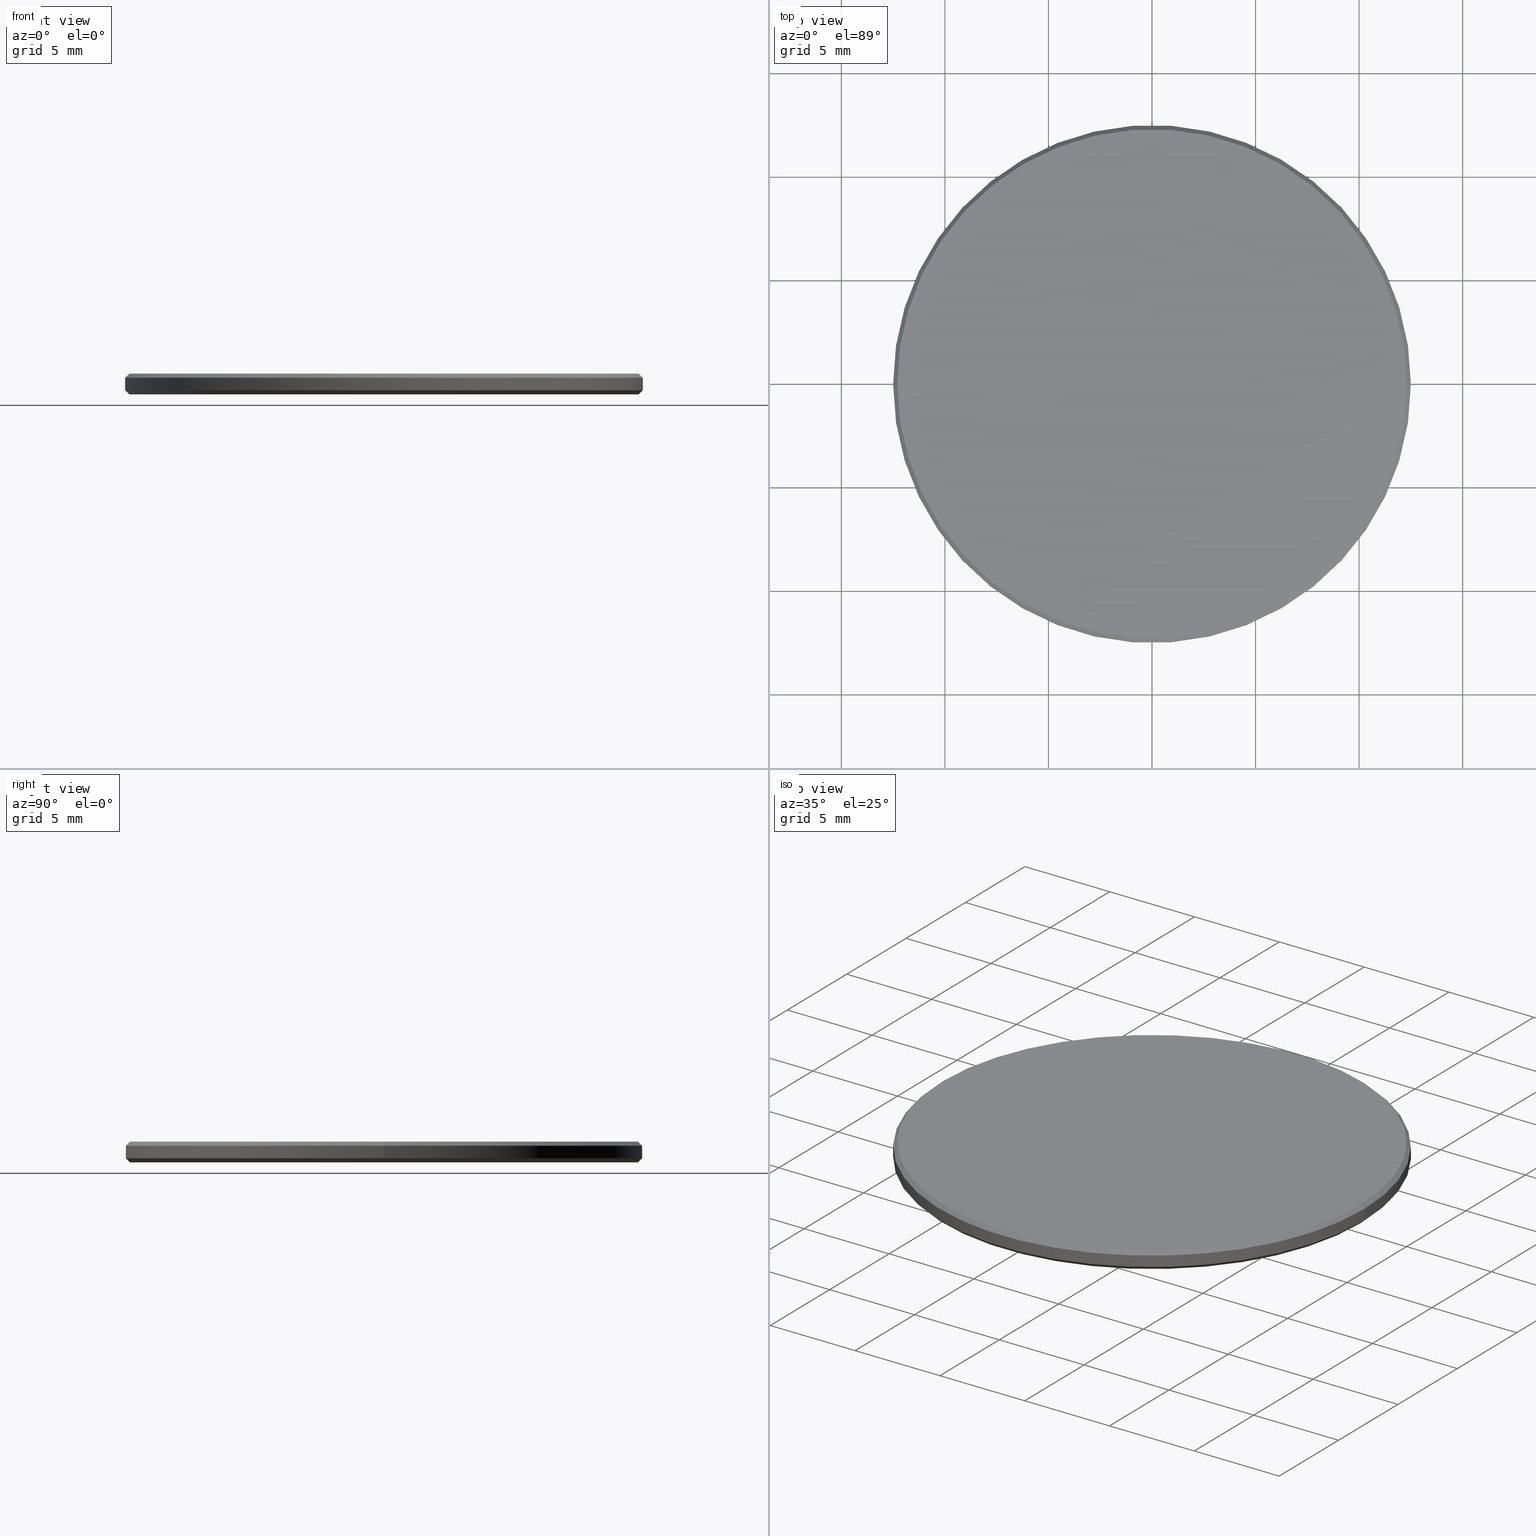
[diagram: canonical four-view strip — front | top / right | iso, engineering-drawing reading convention]
A machine part, canonical four-view strip (front | top / right | iso — engineering-drawing reading convention). The complete STEP part file that produces these views, byte-faithful:
ISO-10303-21;
HEADER;
FILE_DESCRIPTION (( 'STEP AP214' ),
    '1' );
FILE_NAME ('GNIF-220-5250-D25.STEP',
    '2024-07-19T14:27:09',
    ( '' ),
    ( '' ),
    'SwSTEP 2.0',
    'SolidWorks 2022',
    '' );
FILE_SCHEMA (( 'AUTOMOTIVE_DESIGN' ));
ENDSEC;

DATA;
#1 = CARTESIAN_POINT ( 'NONE',  ( 0.000000000000000000, 0.000000000000000000, 0.1999999999999987899 ) ) ;
#2 = PRESENTATION_LAYER_ASSIGNMENT (  '', '', ( #223 ) ) ;
#3 = EDGE_CURVE ( 'NONE', #154, #189, #91, .T. ) ;
#4 = FACE_OUTER_BOUND ( 'NONE', #82, .T. ) ;
#5 = VECTOR ( 'NONE', #90, 1000.000000000000114 ) ;
#6 = AXIS2_PLACEMENT_3D ( 'NONE', #219, #32, #31 ) ;
#7 = CARTESIAN_POINT ( 'NONE',  ( 0.000000000000000000, 0.000000000000000000, 0.8000000000000029310 ) ) ;
#8 = FILL_AREA_STYLE ('',( #57 ) ) ;
#9 = ORIENTED_EDGE ( 'NONE', *, *, #23, .T. ) ;
#10 = ORIENTED_EDGE ( 'NONE', *, *, #109, .F. ) ;
#11 = EDGE_LOOP ( 'NONE', ( #214, #10, #230, #135 ) ) ;
#12 = AXIS2_PLACEMENT_3D ( 'NONE', #106, #160, #94 ) ;
#13 = COLOUR_RGB ( '',1.000000000000000000, 1.000000000000000000, 1.000000000000000000 ) ;
#14 = EDGE_LOOP ( 'NONE', ( #117, #114 ) ) ;
#15 = CARTESIAN_POINT ( 'NONE',  ( 0.000000000000000000, 0.000000000000000000, 1.000000000000000000 ) ) ;
#16 = LINE ( 'NONE', #51, #30 ) ;
#17 = DIRECTION ( 'NONE',  ( 0.000000000000000000, 0.000000000000000000, -1.000000000000000000 ) ) ;
#18 = DIRECTION ( 'NONE',  ( -0.000000000000000000, -0.000000000000000000, -1.000000000000000000 ) ) ;
#19 = APPLICATION_CONTEXT ( 'automotive_design' ) ;
#20 = CARTESIAN_POINT ( 'NONE',  ( 0.000000000000000000, 0.000000000000000000, 1.000000000000000000 ) ) ;
#21 = CARTESIAN_POINT ( 'NONE',  ( 0.000000000000000000, 0.000000000000000000, 0.1999999999999987899 ) ) ;
#22 =( LENGTH_UNIT ( ) NAMED_UNIT ( * ) SI_UNIT ( .MILLI., .METRE. ) );
#23 = EDGE_CURVE ( 'NONE', #227, #116, #202, .T. ) ;
#24 = FACE_OUTER_BOUND ( 'NONE', #224, .T. ) ;
#25 = VERTEX_POINT ( 'NONE', #122 ) ;
#26 = SHAPE_DEFINITION_REPRESENTATION ( #198, #169 ) ;
#27 = AXIS2_PLACEMENT_3D ( 'NONE', #199, #92, #161 ) ;
#28 = ORIENTED_EDGE ( 'NONE', *, *, #3, .F. ) ;
#29 = ORIENTED_EDGE ( 'NONE', *, *, #188, .T. ) ;
#30 = VECTOR ( 'NONE', #162, 1000.000000000000000 ) ;
#31 = DIRECTION ( 'NONE',  ( -1.000000000000000000, 0.000000000000000000, 0.000000000000000000 ) ) ;
#32 = DIRECTION ( 'NONE',  ( 0.000000000000000000, 0.000000000000000000, -1.000000000000000000 ) ) ;
#33 = CARTESIAN_POINT ( 'NONE',  ( -12.50000000000000000, 1.530808498934191521E-15, 0.1999999999999987899 ) ) ;
#34 = EDGE_CURVE ( 'NONE', #25, #193, #70, .T. ) ;
#35 = AXIS2_PLACEMENT_3D ( 'NONE', #144, #159, #141 ) ;
#36 = DIRECTION ( 'NONE',  ( 1.000000000000000000, 0.000000000000000000, 0.000000000000000000 ) ) ;
#37 = CARTESIAN_POINT ( 'NONE',  ( 12.29999999999999893, 1.506315562951244216E-15, 1.000000000000000000 ) ) ;
#38 = CARTESIAN_POINT ( 'NONE',  ( 12.50000000000000000, 1.530808498934191521E-15, 0.8000000000000029310 ) ) ;
#39 = DIRECTION ( 'NONE',  ( -1.000000000000000000, 0.000000000000000000, 0.000000000000000000 ) ) ;
#40 = CONICAL_SURFACE ( 'NONE', #174, 12.29999999999999893, 0.7853981633974612686 ) ;
#41 =( GEOMETRIC_REPRESENTATION_CONTEXT ( 3 ) GLOBAL_UNCERTAINTY_ASSIGNED_CONTEXT ( ( #95 ) ) GLOBAL_UNIT_ASSIGNED_CONTEXT ( ( #42, #173, #118 ) ) REPRESENTATION_CONTEXT ( 'NONE', 'WORKASPACE' ) );
#42 =( LENGTH_UNIT ( ) NAMED_UNIT ( * ) SI_UNIT ( .MILLI., .METRE. ) );
#43 = EDGE_CURVE ( 'NONE', #227, #154, #205, .T. ) ;
#44 = DIRECTION ( 'NONE',  ( 1.000000000000000000, 0.000000000000000000, 0.000000000000000000 ) ) ;
#45 = VERTEX_POINT ( 'NONE', #126 ) ;
#46 = PRODUCT_CONTEXT ( 'NONE', #19, 'mechanical' ) ;
#47 = EDGE_CURVE ( 'NONE', #87, #45, #235, .T. ) ;
#48 = UNCERTAINTY_MEASURE_WITH_UNIT (LENGTH_MEASURE( 1.000000000000000082E-05 ), #56, 'distance_accuracy_value', 'NONE');
#49 = DIRECTION ( 'NONE',  ( 0.000000000000000000, 0.000000000000000000, 1.000000000000000000 ) ) ;
#50 = CARTESIAN_POINT ( 'NONE',  ( 0.000000000000000000, 0.000000000000000000, 1.000000000000000000 ) ) ;
#51 = CARTESIAN_POINT ( 'NONE',  ( -12.50000000000000000, 0.000000000000000000, 1.000000000000000000 ) ) ;
#52 = CARTESIAN_POINT ( 'NONE',  ( -12.50000000000000000, 0.000000000000000000, 0.1999999999999987899 ) ) ;
#53 = AXIS2_PLACEMENT_3D ( 'NONE', #138, #236, #71 ) ;
#54 = AXIS2_PLACEMENT_3D ( 'NONE', #96, #206, #39 ) ;
#55 = FACE_OUTER_BOUND ( 'NONE', #14, .T. ) ;
#56 =( LENGTH_UNIT ( ) NAMED_UNIT ( * ) SI_UNIT ( .MILLI., .METRE. ) );
#57 = FILL_AREA_STYLE_COLOUR ( '', #13 ) ;
#58 =( NAMED_UNIT ( * ) SI_UNIT ( $, .STERADIAN. ) SOLID_ANGLE_UNIT ( ) );
#59 = PRESENTATION_STYLE_ASSIGNMENT (( #164 ) ) ;
#60 =( GEOMETRIC_REPRESENTATION_CONTEXT ( 3 ) GLOBAL_UNCERTAINTY_ASSIGNED_CONTEXT ( ( #48 ) ) GLOBAL_UNIT_ASSIGNED_CONTEXT ( ( #56, #186, #182 ) ) REPRESENTATION_CONTEXT ( 'NONE', 'WORKASPACE' ) );
#61 = APPLICATION_PROTOCOL_DEFINITION ( 'draft international standard', 'automotive_design', 1998, #237 ) ;
#62 = ORIENTED_EDGE ( 'NONE', *, *, #185, .T. ) ;
#63 = AXIS2_PLACEMENT_3D ( 'NONE', #7, #149, #208 ) ;
#64 = CIRCLE ( 'NONE', #132, 12.29999999999999893 ) ;
#65 = ORIENTED_EDGE ( 'NONE', *, *, #93, .T. ) ;
#66 = EDGE_CURVE ( 'NONE', #193, #45, #86, .T. ) ;
#67 = ORIENTED_EDGE ( 'NONE', *, *, #123, .F. ) ;
#68 = VECTOR ( 'NONE', #107, 1000.000000000000000 ) ;
#69 = DIRECTION ( 'NONE',  ( 0.000000000000000000, 0.000000000000000000, 1.000000000000000000 ) ) ;
#70 = LINE ( 'NONE', #37, #68 ) ;
#71 = DIRECTION ( 'NONE',  ( 1.000000000000000000, 0.000000000000000000, -0.000000000000000000 ) ) ;
#72 = FACE_OUTER_BOUND ( 'NONE', #83, .T. ) ;
#73 = AXIS2_PLACEMENT_3D ( 'NONE', #195, #17, #36 ) ;
#74 = CARTESIAN_POINT ( 'NONE',  ( 0.000000000000000000, 0.000000000000000000, 1.000000000000000000 ) ) ;
#75 = ADVANCED_FACE ( 'NONE', ( #204 ), #40, .T. ) ;
#76 = LINE ( 'NONE', #97, #115 ) ;
#77 = DIRECTION ( 'NONE',  ( -0.000000000000000000, -0.000000000000000000, 1.000000000000000000 ) ) ;
#78 = SURFACE_STYLE_FILL_AREA ( #8 ) ;
#79 = CIRCLE ( 'NONE', #215, 12.50000000000000000 ) ;
#80 = STYLED_ITEM ( 'NONE', ( #59 ), #221 ) ;
#81 = ORIENTED_EDGE ( 'NONE', *, *, #47, .F. ) ;
#82 = EDGE_LOOP ( 'NONE', ( #29, #170, #151, #67 ) ) ;
#83 = EDGE_LOOP ( 'NONE', ( #225, #155, #134, #81 ) ) ;
#84 = EDGE_CURVE ( 'NONE', #189, #116, #156, .T. ) ;
#85 = AXIS2_PLACEMENT_3D ( 'NONE', #15, #69, #88 ) ;
#86 = CIRCLE ( 'NONE', #73, 12.50000000000000000 ) ;
#87 = VERTEX_POINT ( 'NONE', #180 ) ;
#88 = DIRECTION ( 'NONE',  ( 1.000000000000000000, 0.000000000000000000, -0.000000000000000000 ) ) ;
#89 = ADVANCED_FACE ( 'NONE', ( #158 ), #176, .F. ) ;
#90 = DIRECTION ( 'NONE',  ( 0.7071067811865474617, 0.000000000000000000, 0.7071067811865474617 ) ) ;
#91 = LINE ( 'NONE', #108, #5 ) ;
#92 = DIRECTION ( 'NONE',  ( -0.000000000000000000, -0.000000000000000000, 1.000000000000000000 ) ) ;
#93 = EDGE_CURVE ( 'NONE', #154, #227, #103, .T. ) ;
#94 = DIRECTION ( 'NONE',  ( 1.000000000000000000, 0.000000000000000000, 0.000000000000000000 ) ) ;
#95 = UNCERTAINTY_MEASURE_WITH_UNIT (LENGTH_MEASURE( 1.000000000000000082E-05 ), #42, 'distance_accuracy_value', 'NONE');
#96 = CARTESIAN_POINT ( 'NONE',  ( 0.000000000000000000, 0.000000000000000000, 1.000000000000000000 ) ) ;
#97 = CARTESIAN_POINT ( 'NONE',  ( 12.50000000000000000, 1.530808498934191521E-15, 1.000000000000000000 ) ) ;
#98 = CARTESIAN_POINT ( 'NONE',  ( -12.30000000000000249, 1.518562030942718164E-15, 0.000000000000000000 ) ) ;
#99 = SURFACE_SIDE_STYLE ('',( #127 ) ) ;
#100 = CARTESIAN_POINT ( 'NONE',  ( 12.50000000000000000, 1.530808498934191521E-15, 0.1999999999999987899 ) ) ;
#101 = ORIENTED_EDGE ( 'NONE', *, *, #43, .T. ) ;
#102 = EDGE_LOOP ( 'NONE', ( #119, #9, #175, #28 ) ) ;
#103 = CIRCLE ( 'NONE', #239, 12.30000000000000249 ) ;
#104 =( GEOMETRIC_REPRESENTATION_CONTEXT ( 3 ) GLOBAL_UNCERTAINTY_ASSIGNED_CONTEXT ( ( #213 ) ) GLOBAL_UNIT_ASSIGNED_CONTEXT ( ( #22, #163, #58 ) ) REPRESENTATION_CONTEXT ( 'NONE', 'WORKASPACE' ) );
#105 = DIRECTION ( 'NONE',  ( -0.7071067811865566766, 0.000000000000000000, -0.7071067811865383579 ) ) ;
#106 = CARTESIAN_POINT ( 'NONE',  ( 0.000000000000000000, 0.000000000000000000, 0.1999999999999987899 ) ) ;
#107 = DIRECTION ( 'NONE',  ( 0.7071067811865566766, 8.659560562355045024E-17, -0.7071067811865383579 ) ) ;
#108 = CARTESIAN_POINT ( 'NONE',  ( 12.50000000000000000, 0.000000000000000000, 0.1999999999999987899 ) ) ;
#109 = EDGE_CURVE ( 'NONE', #87, #25, #64, .T. ) ;
#110 = FACE_OUTER_BOUND ( 'NONE', #157, .T. ) ;
#111 = APPLICATION_PROTOCOL_DEFINITION ( 'draft international standard', 'automotive_design', 1998, #19 ) ;
#112 = PRODUCT_DEFINITION_FORMATION_WITH_SPECIFIED_SOURCE ( '�κ�', '', #142, .NOT_KNOWN. ) ;
#113 = ORIENTED_EDGE ( 'NONE', *, *, #3, .T. ) ;
#114 = ORIENTED_EDGE ( 'NONE', *, *, #152, .T. ) ;
#115 = VECTOR ( 'NONE', #207, 1000.000000000000000 ) ;
#116 = VERTEX_POINT ( 'NONE', #52 ) ;
#117 = ORIENTED_EDGE ( 'NONE', *, *, #109, .T. ) ;
#118 =( NAMED_UNIT ( * ) SI_UNIT ( $, .STERADIAN. ) SOLID_ANGLE_UNIT ( ) );
#119 = ORIENTED_EDGE ( 'NONE', *, *, #43, .F. ) ;
#120 = FACE_OUTER_BOUND ( 'NONE', #102, .T. ) ;
#121 = DIRECTION ( 'NONE',  ( 0.000000000000000000, 0.000000000000000000, 1.000000000000000000 ) ) ;
#122 = CARTESIAN_POINT ( 'NONE',  ( 12.29999999999999893, 1.518562030942717967E-15, 1.000000000000000000 ) ) ;
#123 = EDGE_CURVE ( 'NONE', #45, #116, #16, .T. ) ;
#124 = CYLINDRICAL_SURFACE ( 'NONE', #125, 12.50000000000000000 ) ;
#125 = AXIS2_PLACEMENT_3D ( 'NONE', #74, #18, #233 ) ;
#126 = CARTESIAN_POINT ( 'NONE',  ( -12.50000000000000000, 0.000000000000000000, 0.8000000000000029310 ) ) ;
#127 = SURFACE_STYLE_FILL_AREA ( #130 ) ;
#128 = SURFACE_STYLE_USAGE ( .BOTH. , #220 ) ;
#129 = CARTESIAN_POINT ( 'NONE',  ( 12.30000000000000249, 0.000000000000000000, 0.000000000000000000 ) ) ;
#130 = FILL_AREA_STYLE ('',( #146 ) ) ;
#131 = ADVANCED_FACE ( 'NONE', ( #110 ), #124, .T. ) ;
#132 = AXIS2_PLACEMENT_3D ( 'NONE', #238, #49, #217 ) ;
#133 = EDGE_LOOP ( 'NONE', ( #65, #101 ) ) ;
#134 = ORIENTED_EDGE ( 'NONE', *, *, #188, .F. ) ;
#135 = ORIENTED_EDGE ( 'NONE', *, *, #66, .F. ) ;
#136 = CLOSED_SHELL ( 'NONE', ( #139, #148, #232, #131, #150, #89, #75, #226 ) ) ;
#137 = PLANE ( 'NONE',  #85 ) ;
#138 = CARTESIAN_POINT ( 'NONE',  ( 0.000000000000000000, 0.000000000000000000, 0.000000000000000000 ) ) ;
#139 = ADVANCED_FACE ( 'NONE', ( #120 ), #234, .T. ) ;
#140 = DIRECTION ( 'NONE',  ( -0.000000000000000000, -0.000000000000000000, -1.000000000000000000 ) ) ;
#141 = DIRECTION ( 'NONE',  ( 1.000000000000000000, 0.000000000000000000, 0.000000000000000000 ) ) ;
#142 = PRODUCT ( 'GNIF-220-5250-D25', 'GNIF-220-5250-D25', '', ( #46 ) ) ;
#143 = AXIS2_PLACEMENT_3D ( 'NONE', #1, #166, #222 ) ;
#144 = CARTESIAN_POINT ( 'NONE',  ( 0.000000000000000000, 0.000000000000000000, 0.000000000000000000 ) ) ;
#145 = PRODUCT_DEFINITION ( 'δ֪', '', #112, #171 ) ;
#146 = FILL_AREA_STYLE_COLOUR ( '', #200 ) ;
#147 = CYLINDRICAL_SURFACE ( 'NONE', #54, 12.50000000000000000 ) ;
#148 = ADVANCED_FACE ( 'NONE', ( #72 ), #183, .T. ) ;
#149 = DIRECTION ( 'NONE',  ( 0.000000000000000000, 0.000000000000000000, -1.000000000000000000 ) ) ;
#150 = ADVANCED_FACE ( 'NONE', ( #55 ), #137, .T. ) ;
#151 = ORIENTED_EDGE ( 'NONE', *, *, #84, .T. ) ;
#152 = EDGE_CURVE ( 'NONE', #25, #87, #178, .T. ) ;
#153 = DIRECTION ( 'NONE',  ( 0.000000000000000000, 0.000000000000000000, 1.000000000000000000 ) ) ;
#154 = VERTEX_POINT ( 'NONE', #129 ) ;
#155 = ORIENTED_EDGE ( 'NONE', *, *, #34, .T. ) ;
#156 = CIRCLE ( 'NONE', #12, 12.50000000000000000 ) ;
#157 = EDGE_LOOP ( 'NONE', ( #192, #172, #231, #62 ) ) ;
#158 = FACE_OUTER_BOUND ( 'NONE', #133, .T. ) ;
#159 = DIRECTION ( 'NONE',  ( -0.000000000000000000, -0.000000000000000000, -1.000000000000000000 ) ) ;
#160 = DIRECTION ( 'NONE',  ( -0.000000000000000000, -0.000000000000000000, 1.000000000000000000 ) ) ;
#161 = DIRECTION ( 'NONE',  ( 1.000000000000000000, 0.000000000000000000, 0.000000000000000000 ) ) ;
#162 = DIRECTION ( 'NONE',  ( -0.000000000000000000, -0.000000000000000000, -1.000000000000000000 ) ) ;
#163 =( NAMED_UNIT ( * ) PLANE_ANGLE_UNIT ( ) SI_UNIT ( $, .RADIAN. ) );
#164 = SURFACE_STYLE_USAGE ( .BOTH. , #99 ) ;
#165 = CIRCLE ( 'NONE', #63, 12.50000000000000000 ) ;
#166 = DIRECTION ( 'NONE',  ( -0.000000000000000000, -0.000000000000000000, 1.000000000000000000 ) ) ;
#167 = VECTOR ( 'NONE', #179, 1000.000000000000114 ) ;
#168 = ORIENTED_EDGE ( 'NONE', *, *, #185, .F. ) ;
#169 = ADVANCED_BREP_SHAPE_REPRESENTATION ( 'GNIF-220-5250-D25', ( #221, #187 ), #60 ) ;
#170 = ORIENTED_EDGE ( 'NONE', *, *, #211, .T. ) ;
#171 = PRODUCT_DEFINITION_CONTEXT ( 'detailed design', #237, 'design' ) ;
#172 = ORIENTED_EDGE ( 'NONE', *, *, #66, .T. ) ;
#173 =( NAMED_UNIT ( * ) PLANE_ANGLE_UNIT ( ) SI_UNIT ( $, .RADIAN. ) );
#174 = AXIS2_PLACEMENT_3D ( 'NONE', #20, #240, #216 ) ;
#175 = ORIENTED_EDGE ( 'NONE', *, *, #84, .F. ) ;
#176 = PLANE ( 'NONE',  #53 ) ;
#177 = CARTESIAN_POINT ( 'NONE',  ( 0.000000000000000000, 0.000000000000000000, 0.000000000000000000 ) ) ;
#178 = CIRCLE ( 'NONE', #209, 12.29999999999999893 ) ;
#179 = DIRECTION ( 'NONE',  ( -0.7071067811865474617, 8.659560562354932858E-17, 0.7071067811865474617 ) ) ;
#180 = CARTESIAN_POINT ( 'NONE',  ( -12.29999999999999893, 0.000000000000000000, 1.000000000000000000 ) ) ;
#181 = CARTESIAN_POINT ( 'NONE',  ( -12.29999999999999893, 0.000000000000000000, 1.000000000000000000 ) ) ;
#182 =( NAMED_UNIT ( * ) SI_UNIT ( $, .STERADIAN. ) SOLID_ANGLE_UNIT ( ) );
#183 = CONICAL_SURFACE ( 'NONE', #6, 12.29999999999999893, 0.7853981633974612686 ) ;
#184 = DIRECTION ( 'NONE',  ( 1.000000000000000000, 0.000000000000000000, 0.000000000000000000 ) ) ;
#185 = EDGE_CURVE ( 'NONE', #116, #189, #79, .T. ) ;
#186 =( NAMED_UNIT ( * ) PLANE_ANGLE_UNIT ( ) SI_UNIT ( $, .RADIAN. ) );
#187 = AXIS2_PLACEMENT_3D ( 'NONE', #210, #153, #44 ) ;
#188 = EDGE_CURVE ( 'NONE', #45, #193, #165, .T. ) ;
#189 = VERTEX_POINT ( 'NONE', #100 ) ;
#190 = PRESENTATION_STYLE_ASSIGNMENT (( #128 ) ) ;
#191 = ORIENTED_EDGE ( 'NONE', *, *, #93, .F. ) ;
#192 = ORIENTED_EDGE ( 'NONE', *, *, #211, .F. ) ;
#193 = VERTEX_POINT ( 'NONE', #38 ) ;
#194 = CONICAL_SURFACE ( 'NONE', #143, 12.50000000000000000, 0.7853981633974482790 ) ;
#195 = CARTESIAN_POINT ( 'NONE',  ( 0.000000000000000000, 0.000000000000000000, 0.8000000000000029310 ) ) ;
#196 = DIRECTION ( 'NONE',  ( 1.000000000000000000, 0.000000000000000000, 0.000000000000000000 ) ) ;
#197 = PRODUCT_RELATED_PRODUCT_CATEGORY ( 'part', '', ( #142 ) ) ;
#198 = PRODUCT_DEFINITION_SHAPE ( 'NONE', 'NONE',  #145 ) ;
#199 = CARTESIAN_POINT ( 'NONE',  ( 0.000000000000000000, 0.000000000000000000, 0.1999999999999987899 ) ) ;
#200 = COLOUR_RGB ( '',1.000000000000000000, 1.000000000000000000, 1.000000000000000000 ) ;
#201 = PRESENTATION_LAYER_ASSIGNMENT (  '', '', ( #80 ) ) ;
#202 = LINE ( 'NONE', #33, #167 ) ;
#203 = MECHANICAL_DESIGN_GEOMETRIC_PRESENTATION_REPRESENTATION (  '', ( #223 ), #41 ) ;
#204 = FACE_OUTER_BOUND ( 'NONE', #11, .T. ) ;
#205 = CIRCLE ( 'NONE', #35, 12.30000000000000249 ) ;
#206 = DIRECTION ( 'NONE',  ( -0.000000000000000000, -0.000000000000000000, -1.000000000000000000 ) ) ;
#207 = DIRECTION ( 'NONE',  ( -0.000000000000000000, -0.000000000000000000, -1.000000000000000000 ) ) ;
#208 = DIRECTION ( 'NONE',  ( 1.000000000000000000, 0.000000000000000000, 0.000000000000000000 ) ) ;
#209 = AXIS2_PLACEMENT_3D ( 'NONE', #50, #121, #196 ) ;
#210 = CARTESIAN_POINT ( 'NONE',  ( 0.000000000000000000, 0.000000000000000000, 0.000000000000000000 ) ) ;
#211 = EDGE_CURVE ( 'NONE', #193, #189, #76, .T. ) ;
#212 = ORIENTED_EDGE ( 'NONE', *, *, #23, .F. ) ;
#213 = UNCERTAINTY_MEASURE_WITH_UNIT (LENGTH_MEASURE( 1.000000000000000082E-05 ), #22, 'distance_accuracy_value', 'NONE');
#214 = ORIENTED_EDGE ( 'NONE', *, *, #34, .F. ) ;
#215 = AXIS2_PLACEMENT_3D ( 'NONE', #21, #77, #184 ) ;
#216 = DIRECTION ( 'NONE',  ( -1.000000000000000000, 0.000000000000000000, 0.000000000000000000 ) ) ;
#217 = DIRECTION ( 'NONE',  ( 1.000000000000000000, 0.000000000000000000, 0.000000000000000000 ) ) ;
#218 = DIRECTION ( 'NONE',  ( 1.000000000000000000, 0.000000000000000000, 0.000000000000000000 ) ) ;
#219 = CARTESIAN_POINT ( 'NONE',  ( 0.000000000000000000, 0.000000000000000000, 1.000000000000000000 ) ) ;
#220 = SURFACE_SIDE_STYLE ('',( #78 ) ) ;
#221 = MANIFOLD_SOLID_BREP ( '����1', #136 ) ;
#222 = DIRECTION ( 'NONE',  ( 1.000000000000000000, 0.000000000000000000, 0.000000000000000000 ) ) ;
#223 = STYLED_ITEM ( 'NONE', ( #190 ), #169 ) ;
#224 = EDGE_LOOP ( 'NONE', ( #212, #191, #113, #168 ) ) ;
#225 = ORIENTED_EDGE ( 'NONE', *, *, #152, .F. ) ;
#226 = ADVANCED_FACE ( 'NONE', ( #24 ), #194, .T. ) ;
#227 = VERTEX_POINT ( 'NONE', #98 ) ;
#228 = VECTOR ( 'NONE', #105, 1000.000000000000000 ) ;
#229 = MECHANICAL_DESIGN_GEOMETRIC_PRESENTATION_REPRESENTATION (  '', ( #80 ), #104 ) ;
#230 = ORIENTED_EDGE ( 'NONE', *, *, #47, .T. ) ;
#231 = ORIENTED_EDGE ( 'NONE', *, *, #123, .T. ) ;
#232 = ADVANCED_FACE ( 'NONE', ( #4 ), #147, .T. ) ;
#233 = DIRECTION ( 'NONE',  ( -1.000000000000000000, 0.000000000000000000, 0.000000000000000000 ) ) ;
#234 = CONICAL_SURFACE ( 'NONE', #27, 12.50000000000000000, 0.7853981633974482790 ) ;
#235 = LINE ( 'NONE', #181, #228 ) ;
#236 = DIRECTION ( 'NONE',  ( 0.000000000000000000, 0.000000000000000000, 1.000000000000000000 ) ) ;
#237 = APPLICATION_CONTEXT ( 'automotive_design' ) ;
#238 = CARTESIAN_POINT ( 'NONE',  ( 0.000000000000000000, 0.000000000000000000, 1.000000000000000000 ) ) ;
#239 = AXIS2_PLACEMENT_3D ( 'NONE', #177, #140, #218 ) ;
#240 = DIRECTION ( 'NONE',  ( 0.000000000000000000, 0.000000000000000000, -1.000000000000000000 ) ) ;
ENDSEC;
END-ISO-10303-21;
